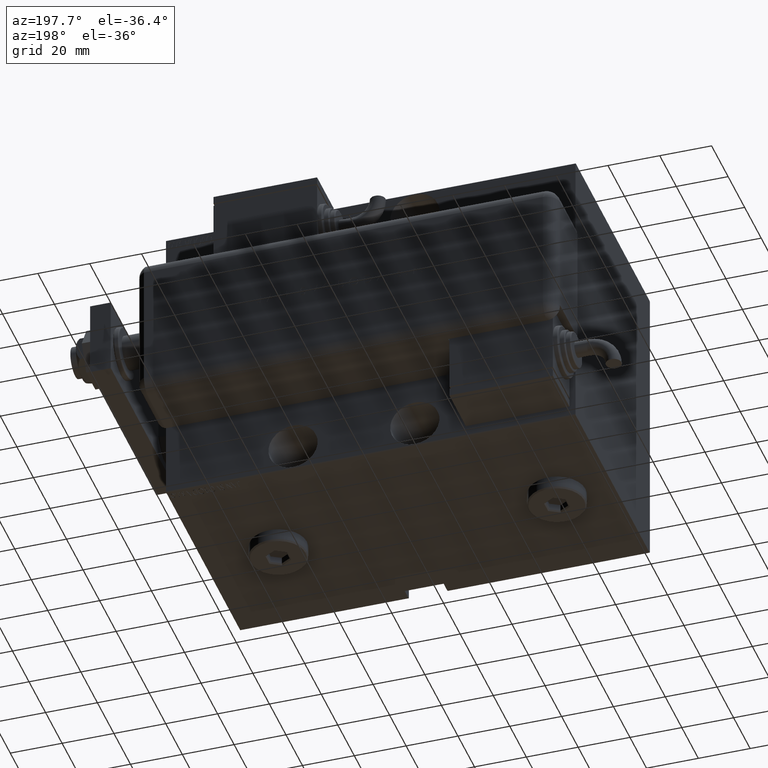
[diagram: clean part render]
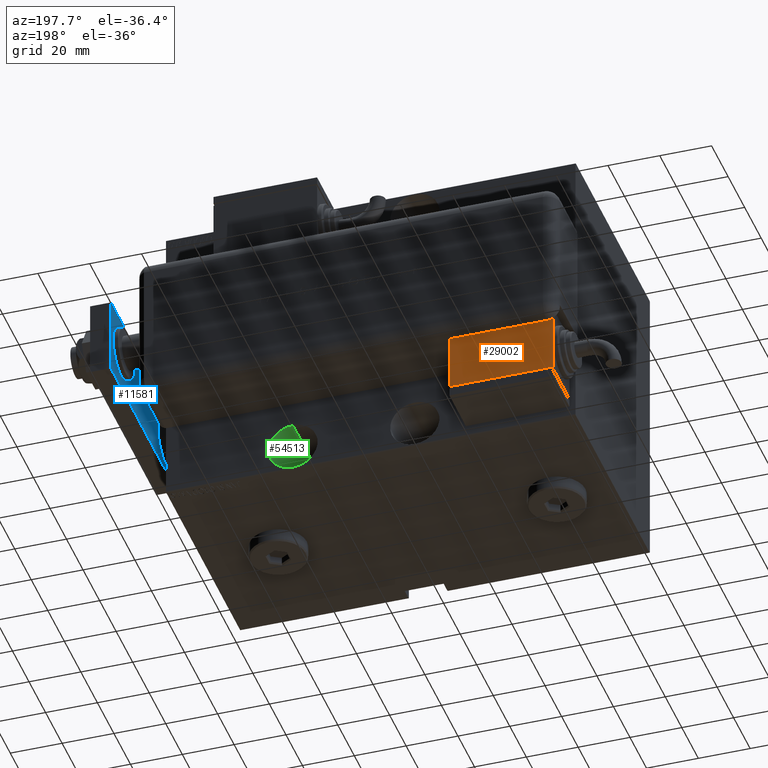
[diagram: same view with three faces highlighted in distinct colors, each labeled with its STEP entity id]
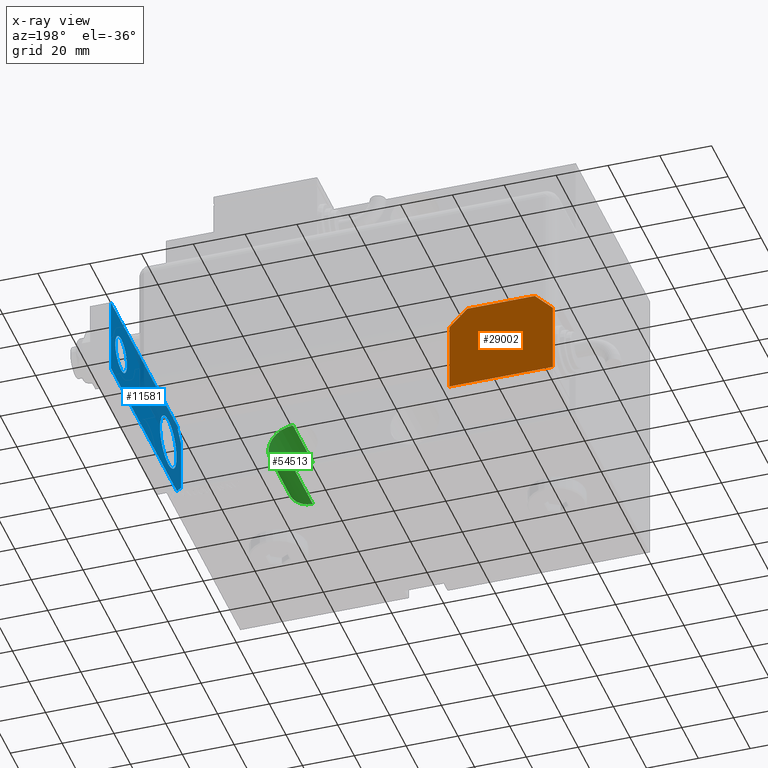
[diagram: x-ray of the same camera — body ghosted, the three highlighted faces saturated]
A machine part, auxiliary view with three faces highlighted in distinct colors.
The next image is the same camera in x-ray (body ghosted, the three faces saturated) — at least one of them is partly hidden behind the body in this view.
Their STEP definitions:

[orange] entity #29002 — the highlighted planar face has unit normal (0, -1, -0).
#201 = FACE_OUTER_BOUND ( 'NONE', #20679, .T. ) ;
#973 = VERTEX_POINT ( 'NONE', #35624 ) ;
#3705 = LINE ( 'NONE', #40463, #39757 ) ;
#6395 = VERTEX_POINT ( 'NONE', #11912 ) ;
#8413 = EDGE_CURVE ( 'NONE', #17545, #6395, #19957, .T. ) ;
#9219 = EDGE_CURVE ( 'NONE', #6395, #13672, #3705, .T. ) ;
#10059 = CARTESIAN_POINT ( 'NONE',  ( 12.99999999999999112, 20.50000000000009592, -10.00000000000000000 ) ) ;
#10393 = VECTOR ( 'NONE', #53533, 1000.000000000000000 ) ;
#11167 = LINE ( 'NONE', #28685, #10393 ) ;
#11912 = CARTESIAN_POINT ( 'NONE',  ( -19.99999999999993960, 13.49999999999986500, -10.00000000000000000 ) ) ;
#12885 = DIRECTION ( 'NONE',  ( -1.284980352575421081E-16, -1.000000000000000000, -0.000000000000000000 ) ) ;
#13032 = VECTOR ( 'NONE', #12885, 1000.000000000000000 ) ;
#13672 = VERTEX_POINT ( 'NONE', #56766 ) ;
#16090 = ORIENTED_EDGE ( 'NONE', *, *, #28717, .F. ) ;
#17545 = VERTEX_POINT ( 'NONE', #36403 ) ;
#18595 = LINE ( 'NONE', #58637, #13032 ) ;
#19219 = CARTESIAN_POINT ( 'NONE',  ( -19.99999999999994316, -13.49999999999996092, -10.00000000000000000 ) ) ;
#19957 = LINE ( 'NONE', #47929, #26309 ) ;
#20603 = ORIENTED_EDGE ( 'NONE', *, *, #8413, .F. ) ;
#20679 = EDGE_LOOP ( 'NONE', ( #20603, #46037, #48625, #16090, #50427, #48993, #26065 ) ) ;
#20812 = LINE ( 'NONE', #48184, #22726 ) ;
#21048 = AXIS2_PLACEMENT_3D ( 'NONE', #47163, #23125, #36982 ) ;
#21225 = LINE ( 'NONE', #57617, #53983 ) ;
#22726 = VECTOR ( 'NONE', #25320, 1000.000000000000000 ) ;
#23125 = DIRECTION ( 'NONE',  ( 0.000000000000000000, 0.000000000000000000, 1.000000000000000000 ) ) ;
#25064 = DIRECTION ( 'NONE',  ( -0.7071067811865356934, -0.7071067811865593411, -0.000000000000000000 ) ) ;
#25320 = DIRECTION ( 'NONE',  ( 1.000000000000000000, 0.000000000000000000, 0.000000000000000000 ) ) ;
#26065 = ORIENTED_EDGE ( 'NONE', *, *, #9219, .F. ) ;
#26309 = VECTOR ( 'NONE', #25064, 1000.000000000000000 ) ;
#28685 = CARTESIAN_POINT ( 'NONE',  ( 20.00000000000005329, -13.49999999999996092, -10.00000000000000000 ) ) ;
#28717 = EDGE_CURVE ( 'NONE', #48238, #973, #11167, .T. ) ;
#29002 = ADVANCED_FACE ( 'NONE', ( #201 ), #46875, .F. ) ;
#30344 = CARTESIAN_POINT ( 'NONE',  ( -19.99999999999994316, -13.49999999999996092, -10.00000000000000000 ) ) ;
#33423 = EDGE_CURVE ( 'NONE', #973, #48482, #21225, .T. ) ;
#33759 = CARTESIAN_POINT ( 'NONE',  ( 20.00000000000005329, -13.49999999999996092, -10.00000000000000000 ) ) ;
#35624 = CARTESIAN_POINT ( 'NONE',  ( 20.00000000000005684, 13.50000000000003730, -10.00000000000000000 ) ) ;
#36403 = CARTESIAN_POINT ( 'NONE',  ( -12.99999999999994138, 20.50000000000009592, -10.00000000000000000 ) ) ;
#36982 = DIRECTION ( 'NONE',  ( 1.000000000000000000, 0.000000000000000000, -0.000000000000000000 ) ) ;
#39660 = DIRECTION ( 'NONE',  ( 1.000000000000000000, 0.000000000000000000, 0.000000000000000000 ) ) ;
#39757 = VECTOR ( 'NONE', #58784, 1000.000000000000000 ) ;
#40463 = CARTESIAN_POINT ( 'NONE',  ( -19.99999999999994316, -13.49999999999996092, -10.00000000000000000 ) ) ;
#43755 = EDGE_CURVE ( 'NONE', #13672, #53193, #18595, .T. ) ;
#46037 = ORIENTED_EDGE ( 'NONE', *, *, #48363, .T. ) ;
#46875 = PLANE ( 'NONE',  #21048 ) ;
#47163 = CARTESIAN_POINT ( 'NONE',  ( 0.000000000000000000, 0.000000000000000000, -10.00000000000000000 ) ) ;
#47929 = CARTESIAN_POINT ( 'NONE',  ( -19.99999999999993960, 13.49999999999986500, -10.00000000000000000 ) ) ;
#48184 = CARTESIAN_POINT ( 'NONE',  ( 0.000000000000000000, 20.50000000000009592, -10.00000000000000000 ) ) ;
#48238 = VERTEX_POINT ( 'NONE', #33759 ) ;
#48363 = EDGE_CURVE ( 'NONE', #17545, #48482, #20812, .T. ) ;
#48482 = VERTEX_POINT ( 'NONE', #10059 ) ;
#48625 = ORIENTED_EDGE ( 'NONE', *, *, #33423, .F. ) ;
#48993 = ORIENTED_EDGE ( 'NONE', *, *, #43755, .F. ) ;
#49509 = DIRECTION ( 'NONE',  ( -0.7071067811865479058, 0.7071067811865470176, -0.000000000000000000 ) ) ;
#50427 = ORIENTED_EDGE ( 'NONE', *, *, #56639, .F. ) ;
#53187 = LINE ( 'NONE', #30344, #54708 ) ;
#53193 = VERTEX_POINT ( 'NONE', #19219 ) ;
#53533 = DIRECTION ( 'NONE',  ( 1.284980352575412699E-16, 1.000000000000000000, 0.000000000000000000 ) ) ;
#53983 = VECTOR ( 'NONE', #49509, 1000.000000000000114 ) ;
#54708 = VECTOR ( 'NONE', #39660, 1000.000000000000000 ) ;
#56639 = EDGE_CURVE ( 'NONE', #53193, #48238, #53187, .T. ) ;
#56766 = CARTESIAN_POINT ( 'NONE',  ( -19.99999999999993960, 2.569960705150834076E-15, -9.999999999999996447 ) ) ;
#57617 = CARTESIAN_POINT ( 'NONE',  ( 9.999999999999984013, 23.50000000000009592, -10.00000000000000000 ) ) ;
#58637 = CARTESIAN_POINT ( 'NONE',  ( -19.99999999999994316, -13.49999999999996092, -10.00000000000000000 ) ) ;
#58784 = DIRECTION ( 'NONE',  ( -1.284980352575421081E-16, -1.000000000000000000, -0.000000000000000000 ) ) ;

[blue] entity #11581 — the highlighted planar face has unit normal (-1, 0, 0).
#692 = ORIENTED_EDGE ( 'NONE', *, *, #5046, .F. ) ;
#1856 = CARTESIAN_POINT ( 'NONE',  ( -9.999999999999989342, 9.629649721936179265E-32, 8.000000000000000000 ) ) ;
#2257 = CARTESIAN_POINT ( 'NONE',  ( -5.000000000000008882, -4.999999999999994671, 8.000000000000000000 ) ) ;
#2473 = EDGE_CURVE ( 'NONE', #20696, #47851, #31880, .T. ) ;
#2830 = FACE_BOUND ( 'NONE', #34055, .T. ) ;
#3741 = VECTOR ( 'NONE', #26233, 1000.000000000000000 ) ;
#5046 = EDGE_CURVE ( 'NONE', #10574, #15044, #30045, .T. ) ;
#6185 = ORIENTED_EDGE ( 'NONE', *, *, #54639, .T. ) ;
#6325 = DIRECTION ( 'NONE',  ( -1.020425574104004122E-16, -1.000000000000000000, 0.000000000000000000 ) ) ;
#6933 = CARTESIAN_POINT ( 'NONE',  ( 4.999999999999987566, -5.000000000000001776, 8.000000000000000000 ) ) ;
#7108 = DIRECTION ( 'NONE',  ( 0.000000000000000000, 0.000000000000000000, 1.000000000000000000 ) ) ;
#7541 = VERTEX_POINT ( 'NONE', #7563 ) ;
#7563 = CARTESIAN_POINT ( 'NONE',  ( -15.00000000000000888, 5.000000000000031974, 8.000000000000000000 ) ) ;
#7804 = ORIENTED_EDGE ( 'NONE', *, *, #11048, .F. ) ;
#9099 = VERTEX_POINT ( 'NONE', #41059 ) ;
#10137 = VECTOR ( 'NONE', #12896, 1000.000000000000000 ) ;
#10574 = VERTEX_POINT ( 'NONE', #29491 ) ;
#10828 = DIRECTION ( 'NONE',  ( 0.000000000000000000, 0.000000000000000000, 1.000000000000000000 ) ) ;
#11048 = EDGE_CURVE ( 'NONE', #15044, #10574, #46576, .T. ) ;
#11148 = LINE ( 'NONE', #47888, #51297 ) ;
#11284 = DIRECTION ( 'NONE',  ( 0.000000000000000000, 0.000000000000000000, 1.000000000000000000 ) ) ;
#11581 = ADVANCED_FACE ( 'NONE', ( #2830, #58515, #31460 ), #22419, .T. ) ;
#11725 = CARTESIAN_POINT ( 'NONE',  ( 1.963948872468190046E-17, 72.50000000000001421, 8.000000000000000000 ) ) ;
#11763 = LINE ( 'NONE', #6933, #3741 ) ;
#12160 = DIRECTION ( 'NONE',  ( -0.000000000000000000, 0.000000000000000000, 1.000000000000000000 ) ) ;
#12348 = ORIENTED_EDGE ( 'NONE', *, *, #31414, .F. ) ;
#12830 = VERTEX_POINT ( 'NONE', #38054 ) ;
#12896 = DIRECTION ( 'NONE',  ( -1.000000000000000000, 0.000000000000000000, 0.000000000000000000 ) ) ;
#13134 = EDGE_CURVE ( 'NONE', #47851, #7541, #11148, .T. ) ;
#13673 = AXIS2_PLACEMENT_3D ( 'NONE', #11725, #10828, #48464 ) ;
#15044 = VERTEX_POINT ( 'NONE', #56698 ) ;
#15220 = CARTESIAN_POINT ( 'NONE',  ( 15.00000000000000888, 9.629649721936179265E-32, 8.000000000000000000 ) ) ;
#16210 = EDGE_LOOP ( 'NONE', ( #53105, #12348 ) ) ;
#16545 = CIRCLE ( 'NONE', #18465, 10.00000000000000711 ) ;
#17386 = CARTESIAN_POINT ( 'NONE',  ( 15.00000000000000178, 85.00000000000000000, 8.000000000000000000 ) ) ;
#18465 = AXIS2_PLACEMENT_3D ( 'NONE', #39302, #11284, #53130 ) ;
#18736 = AXIS2_PLACEMENT_3D ( 'NONE', #40182, #12160, #35655 ) ;
#19470 = LINE ( 'NONE', #2257, #27759 ) ;
#20696 = VERTEX_POINT ( 'NONE', #17386 ) ;
#21718 = DIRECTION ( 'NONE',  ( 1.000000000000000000, 0.000000000000000000, 0.000000000000000000 ) ) ;
#22419 = PLANE ( 'NONE',  #18736 ) ;
#23616 = VECTOR ( 'NONE', #42347, 1000.000000000000000 ) ;
#24279 = DIRECTION ( 'NONE',  ( 0.7071067811865465735, -0.7071067811865485719, 0.000000000000000000 ) ) ;
#26233 = DIRECTION ( 'NONE',  ( 0.7071067811865485719, 0.7071067811865465735, -0.000000000000000000 ) ) ;
#27739 = EDGE_CURVE ( 'NONE', #33729, #12830, #45469, .T. ) ;
#27759 = VECTOR ( 'NONE', #24279, 1000.000000000000000 ) ;
#28542 = CARTESIAN_POINT ( 'NONE',  ( -10.00000000000000711, 15.50000000000000711, 8.000000000000000000 ) ) ;
#28686 = DIRECTION ( 'NONE',  ( 1.000000000000000000, 0.000000000000000000, 0.000000000000000000 ) ) ;
#29146 = ORIENTED_EDGE ( 'NONE', *, *, #2473, .T. ) ;
#29491 = CARTESIAN_POINT ( 'NONE',  ( 7.000000000000000000, 72.50000000000001421, 8.000000000000000000 ) ) ;
#29785 = CARTESIAN_POINT ( 'NONE',  ( 15.00000000000000888, 4.999999999999990230, 8.000000000000000000 ) ) ;
#30045 = CIRCLE ( 'NONE', #13673, 7.000000000000000000 ) ;
#30267 = AXIS2_PLACEMENT_3D ( 'NONE', #48065, #7108, #52286 ) ;
#31414 = EDGE_CURVE ( 'NONE', #9099, #52579, #39390, .T. ) ;
#31460 = FACE_BOUND ( 'NONE', #16210, .T. ) ;
#31828 = EDGE_LOOP ( 'NONE', ( #54095, #6185, #46755, #59540, #52450, #29146 ) ) ;
#31880 = LINE ( 'NONE', #59534, #10137 ) ;
#33633 = AXIS2_PLACEMENT_3D ( 'NONE', #38292, #56341, #28686 ) ;
#33729 = VERTEX_POINT ( 'NONE', #1856 ) ;
#34055 = EDGE_LOOP ( 'NONE', ( #7804, #692 ) ) ;
#35611 = EDGE_CURVE ( 'NONE', #52579, #9099, #16545, .T. ) ;
#35655 = DIRECTION ( 'NONE',  ( 1.000000000000000000, 0.000000000000000000, 0.000000000000000000 ) ) ;
#37292 = VECTOR ( 'NONE', #21718, 1000.000000000000000 ) ;
#38054 = CARTESIAN_POINT ( 'NONE',  ( 10.00000000000000355, 9.629649721936179265E-32, 8.000000000000000000 ) ) ;
#38292 = CARTESIAN_POINT ( 'NONE',  ( 0.000000000000000000, 15.50000000000000711, 8.000000000000000000 ) ) ;
#39302 = CARTESIAN_POINT ( 'NONE',  ( 0.000000000000000000, 15.50000000000000711, 8.000000000000000000 ) ) ;
#39390 = CIRCLE ( 'NONE', #33633, 10.00000000000000711 ) ;
#40182 = CARTESIAN_POINT ( 'NONE',  ( 0.000000000000000000, 0.000000000000000000, 8.000000000000000000 ) ) ;
#41059 = CARTESIAN_POINT ( 'NONE',  ( 10.00000000000000711, 15.50000000000000888, 8.000000000000000000 ) ) ;
#42347 = DIRECTION ( 'NONE',  ( -8.163404592832032733E-17, 1.000000000000000000, 0.000000000000000000 ) ) ;
#42927 = LINE ( 'NONE', #15220, #23616 ) ;
#45469 = LINE ( 'NONE', #59302, #37292 ) ;
#46576 = CIRCLE ( 'NONE', #30267, 7.000000000000000000 ) ;
#46755 = ORIENTED_EDGE ( 'NONE', *, *, #27739, .T. ) ;
#47085 = EDGE_CURVE ( 'NONE', #49056, #20696, #42927, .T. ) ;
#47851 = VERTEX_POINT ( 'NONE', #56158 ) ;
#47888 = CARTESIAN_POINT ( 'NONE',  ( -15.00000000000000000, 85.00000000000000000, 8.000000000000000000 ) ) ;
#48065 = CARTESIAN_POINT ( 'NONE',  ( 1.963948872468190046E-17, 72.50000000000001421, 8.000000000000000000 ) ) ;
#48464 = DIRECTION ( 'NONE',  ( 1.000000000000000000, 0.000000000000000000, 0.000000000000000000 ) ) ;
#49056 = VERTEX_POINT ( 'NONE', #29785 ) ;
#51297 = VECTOR ( 'NONE', #6325, 1000.000000000000000 ) ;
#52286 = DIRECTION ( 'NONE',  ( 1.000000000000000000, 0.000000000000000000, 0.000000000000000000 ) ) ;
#52450 = ORIENTED_EDGE ( 'NONE', *, *, #47085, .T. ) ;
#52579 = VERTEX_POINT ( 'NONE', #28542 ) ;
#53105 = ORIENTED_EDGE ( 'NONE', *, *, #35611, .F. ) ;
#53130 = DIRECTION ( 'NONE',  ( 1.000000000000000000, 0.000000000000000000, 0.000000000000000000 ) ) ;
#54095 = ORIENTED_EDGE ( 'NONE', *, *, #13134, .T. ) ;
#54639 = EDGE_CURVE ( 'NONE', #7541, #33729, #19470, .T. ) ;
#55244 = EDGE_CURVE ( 'NONE', #12830, #49056, #11763, .T. ) ;
#56158 = CARTESIAN_POINT ( 'NONE',  ( -15.00000000000000000, 85.00000000000000000, 8.000000000000000000 ) ) ;
#56341 = DIRECTION ( 'NONE',  ( 0.000000000000000000, 0.000000000000000000, 1.000000000000000000 ) ) ;
#56698 = CARTESIAN_POINT ( 'NONE',  ( -7.000000000000000000, 72.50000000000001421, 8.000000000000000000 ) ) ;
#58515 = FACE_OUTER_BOUND ( 'NONE', #31828, .T. ) ;
#59302 = CARTESIAN_POINT ( 'NONE',  ( -15.00000000000000888, 9.629649721936179265E-32, 8.000000000000000000 ) ) ;
#59534 = CARTESIAN_POINT ( 'NONE',  ( 15.00000000000000178, 85.00000000000000000, 8.000000000000000000 ) ) ;
#59540 = ORIENTED_EDGE ( 'NONE', *, *, #55244, .T. ) ;

[green] entity #54513 — the highlighted cylindrical surface (edge-blend (fillet) strip) has radius 9.5 mm, axis along (-0, 1, 0).
#310 = ORIENTED_EDGE ( 'NONE', *, *, #34090, .T. ) ;
#1721 = DIRECTION ( 'NONE',  ( -0.000000000000000000, -1.000000000000000000, -0.000000000000000000 ) ) ;
#2685 = DIRECTION ( 'NONE',  ( 0.000000000000000000, -1.000000000000000000, 0.000000000000000000 ) ) ;
#3593 = CARTESIAN_POINT ( 'NONE',  ( 48.99999999999997158, -45.00000000000000000, -47.49999999999997868 ) ) ;
#4185 = DIRECTION ( 'NONE',  ( 0.000000000000000000, 0.000000000000000000, -1.000000000000000000 ) ) ;
#4214 = EDGE_CURVE ( 'NONE', #17513, #9914, #57810, .T. ) ;
#4726 = DIRECTION ( 'NONE',  ( 0.000000000000000000, 0.000000000000000000, -1.000000000000000000 ) ) ;
#9914 = VERTEX_POINT ( 'NONE', #24298 ) ;
#10328 = EDGE_CURVE ( 'NONE', #17513, #33957, #54823, .T. ) ;
#11681 = AXIS2_PLACEMENT_3D ( 'NONE', #3593, #44545, #4185 ) ;
#15298 = CARTESIAN_POINT ( 'NONE',  ( 48.99999999999997158, -20.99999999999999645, -56.99999999999997868 ) ) ;
#17513 = VERTEX_POINT ( 'NONE', #39423 ) ;
#18108 = CARTESIAN_POINT ( 'NONE',  ( 48.99999999999997158, -20.99999999999999645, -37.99999999999997868 ) ) ;
#19888 = VECTOR ( 'NONE', #1721, 1000.000000000000000 ) ;
#20632 = EDGE_CURVE ( 'NONE', #9914, #52600, #52014, .T. ) ;
#21085 = DIRECTION ( 'NONE',  ( 0.000000000000000000, 0.000000000000000000, -1.000000000000000000 ) ) ;
#24298 = CARTESIAN_POINT ( 'NONE',  ( 48.99999999999997158, -20.99999999999999645, -56.99999999999997868 ) ) ;
#26799 = CARTESIAN_POINT ( 'NONE',  ( 48.99999999999997158, -20.99999999999999645, -47.49999999999997868 ) ) ;
#28225 = DIRECTION ( 'NONE',  ( -0.000000000000000000, -1.000000000000000000, -0.000000000000000000 ) ) ;
#29219 = CARTESIAN_POINT ( 'NONE',  ( 48.99999999999997158, -45.00000000000000000, -37.99999999999997868 ) ) ;
#31915 = AXIS2_PLACEMENT_3D ( 'NONE', #26799, #2685, #21085 ) ;
#33957 = VERTEX_POINT ( 'NONE', #29219 ) ;
#34090 = EDGE_CURVE ( 'NONE', #33957, #52600, #51112, .T. ) ;
#36372 = CYLINDRICAL_SURFACE ( 'NONE', #41192, 9.500000000000001776 ) ;
#37254 = FACE_OUTER_BOUND ( 'NONE', #49086, .T. ) ;
#39016 = ORIENTED_EDGE ( 'NONE', *, *, #20632, .F. ) ;
#39423 = CARTESIAN_POINT ( 'NONE',  ( 48.99999999999997158, -20.99999999999999645, -37.99999999999997868 ) ) ;
#41192 = AXIS2_PLACEMENT_3D ( 'NONE', #55292, #28225, #4726 ) ;
#42249 = ORIENTED_EDGE ( 'NONE', *, *, #10328, .T. ) ;
#44545 = DIRECTION ( 'NONE',  ( 0.000000000000000000, -1.000000000000000000, 0.000000000000000000 ) ) ;
#49086 = EDGE_LOOP ( 'NONE', ( #57034, #42249, #310, #39016 ) ) ;
#49111 = DIRECTION ( 'NONE',  ( -0.000000000000000000, -1.000000000000000000, -0.000000000000000000 ) ) ;
#49495 = CARTESIAN_POINT ( 'NONE',  ( 48.99999999999997158, -45.00000000000000000, -56.99999999999997868 ) ) ;
#51112 = CIRCLE ( 'NONE', #11681, 9.500000000000001776 ) ;
#52014 = LINE ( 'NONE', #15298, #19888 ) ;
#52600 = VERTEX_POINT ( 'NONE', #49495 ) ;
#54513 = ADVANCED_FACE ( 'NONE', ( #37254 ), #36372, .F. ) ;
#54823 = LINE ( 'NONE', #18108, #59075 ) ;
#55292 = CARTESIAN_POINT ( 'NONE',  ( 48.99999999999997158, -20.99999999999999645, -47.49999999999997868 ) ) ;
#57034 = ORIENTED_EDGE ( 'NONE', *, *, #4214, .F. ) ;
#57810 = CIRCLE ( 'NONE', #31915, 9.500000000000001776 ) ;
#59075 = VECTOR ( 'NONE', #49111, 1000.000000000000000 ) ;